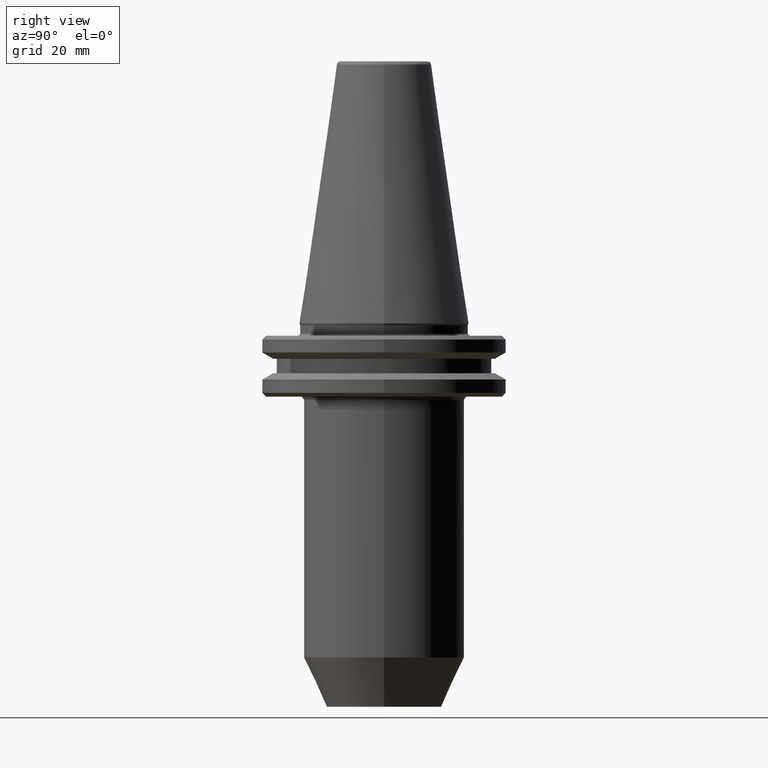
[diagram: clean part render]
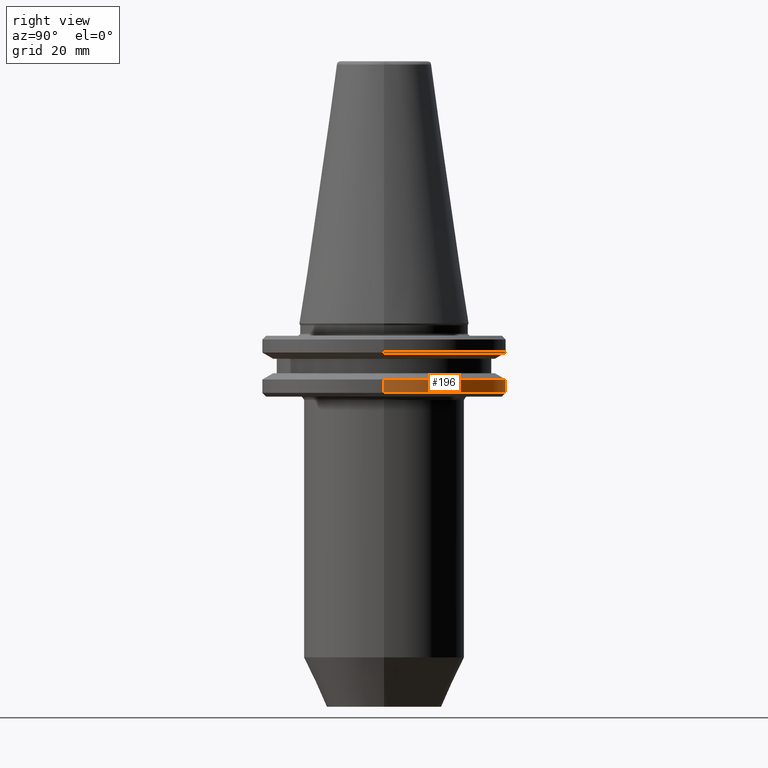
[diagram: same view with one face highlighted and labeled with its STEP entity id]
A machine part, right view. The second image highlights one B-rep face of the part: STEP entity #196.
In plain terms, the highlighted cylindrical surface (partial cylindrical patch) has radius 31.75 mm, axis along (0, 0, 1).
Its self-contained STEP definition (entity closure, byte-faithful):
#56 = DIRECTION ( 'NONE',  ( 0.0000000000000000000, 1.000000000000000000, 5.463695987365708300E-017 ) ) ;
#58 = DIRECTION ( 'NONE',  ( -0.0000000000000000000, -2.997010603902405300E-017, 1.000000000000000000 ) ) ;
#60 = CARTESIAN_POINT ( 'NONE',  ( 0.0000000000000000000, 4.860661613497607000E-017, -14.62183664187525500 ) ) ;
#68 = ORIENTED_EDGE ( 'NONE', *, *, #943, .T. ) ;
#70 = CARTESIAN_POINT ( 'NONE',  ( 31.74999999784801500, 0.0000000000000000000, -18.10000000215199000 ) ) ;
#129 = VERTEX_POINT ( 'NONE', #1045 ) ;
#137 = EDGE_CURVE ( 'NONE', #751, #129, #1102, .T. ) ;
#164 = VECTOR ( 'NONE', #217, 1000.000000000000000 ) ;
#196 = ADVANCED_FACE ( 'NONE', ( #1015 ), #977, .T. ) ;
#216 = CARTESIAN_POINT ( 'NONE',  ( -31.75000000000000000, 3.888253587292846500E-015, -17.93431457499999800 ) ) ;
#217 = DIRECTION ( 'NONE',  ( 0.0000000000000000000, 0.0000000000000000000, 1.000000000000000000 ) ) ;
#235 = VECTOR ( 'NONE', #1115, 1000.000000000000000 ) ;
#265 = EDGE_CURVE ( 'NONE', #1168, #710, #1344, .T. ) ;
#269 = LINE ( 'NONE', #216, #164 ) ;
#275 = CARTESIAN_POINT ( 'NONE',  ( 0.0000000000000000000, 31.74999999978393800, -14.62183664187525300 ) ) ;
#288 = VERTEX_POINT ( 'NONE', #935 ) ;
#315 = CARTESIAN_POINT ( 'NONE',  ( -31.74999999784801500, 3.888253587029304600E-015, -18.10000000215199000 ) ) ;
#381 = ORIENTED_EDGE ( 'NONE', *, *, #137, .F. ) ;
#600 = CARTESIAN_POINT ( 'NONE',  ( 31.75000000000000000, 0.0000000000000000000, -17.93431457499999800 ) ) ;
#605 = EDGE_CURVE ( 'NONE', #1168, #288, #1289, .T. ) ;
#612 = AXIS2_PLACEMENT_3D ( 'NONE', #1034, #961, #1181 ) ;
#669 = ORIENTED_EDGE ( 'NONE', *, *, #265, .T. ) ;
#689 = ORIENTED_EDGE ( 'NONE', *, *, #605, .F. ) ;
#710 = VERTEX_POINT ( 'NONE', #315 ) ;
#751 = VERTEX_POINT ( 'NONE', #275 ) ;
#794 = DIRECTION ( 'NONE',  ( -0.0000000000000000000, -2.997010603902405300E-017, 1.000000000000000000 ) ) ;
#935 = CARTESIAN_POINT ( 'NONE',  ( 31.74999999978393100, 1.653892339742538800E-028, -14.62183664187525500 ) ) ;
#943 = EDGE_CURVE ( 'NONE', #710, #129, #269, .T. ) ;
#961 = DIRECTION ( 'NONE',  ( 0.0000000000000000000, 0.0000000000000000000, 1.000000000000000000 ) ) ;
#966 = AXIS2_PLACEMENT_3D ( 'NONE', #60, #58, #56 ) ;
#977 = CYLINDRICAL_SURFACE ( 'NONE', #612, 31.75000000000000000 ) ;
#1015 = FACE_OUTER_BOUND ( 'NONE', #1247, .T. ) ;
#1016 = DIRECTION ( 'NONE',  ( -0.0000000000000000000, -0.0000000000000000000, 1.000000000000000000 ) ) ;
#1018 = CARTESIAN_POINT ( 'NONE',  ( 0.0000000000000000000, 0.0000000000000000000, -18.10000000215199000 ) ) ;
#1023 = DIRECTION ( 'NONE',  ( 1.000000000000000000, 0.0000000000000000000, 0.0000000000000000000 ) ) ;
#1028 = DIRECTION ( 'NONE',  ( 0.0000000000000000000, 1.000000000000000000, 5.463695987365708300E-017 ) ) ;
#1034 = CARTESIAN_POINT ( 'NONE',  ( 0.0000000000000000000, 0.0000000000000000000, -17.93431457499999800 ) ) ;
#1045 = CARTESIAN_POINT ( 'NONE',  ( -31.74999999978393100, 3.888253587279781400E-015, -14.62183664187525500 ) ) ;
#1059 = CARTESIAN_POINT ( 'NONE',  ( 0.0000000000000000000, 4.860661613497607000E-017, -14.62183664187525500 ) ) ;
#1083 = CIRCLE ( 'NONE', #966, 31.74999999978393100 ) ;
#1102 = CIRCLE ( 'NONE', #1144, 31.74999999978393100 ) ;
#1115 = DIRECTION ( 'NONE',  ( 0.0000000000000000000, 0.0000000000000000000, 1.000000000000000000 ) ) ;
#1122 = EDGE_CURVE ( 'NONE', #288, #751, #1083, .T. ) ;
#1144 = AXIS2_PLACEMENT_3D ( 'NONE', #1059, #794, #1028 ) ;
#1167 = ORIENTED_EDGE ( 'NONE', *, *, #1122, .F. ) ;
#1168 = VERTEX_POINT ( 'NONE', #70 ) ;
#1181 = DIRECTION ( 'NONE',  ( 1.000000000000000000, 0.0000000000000000000, 0.0000000000000000000 ) ) ;
#1247 = EDGE_LOOP ( 'NONE', ( #669, #68, #381, #1167, #689 ) ) ;
#1289 = LINE ( 'NONE', #600, #235 ) ;
#1340 = AXIS2_PLACEMENT_3D ( 'NONE', #1018, #1016, #1023 ) ;
#1344 = CIRCLE ( 'NONE', #1340, 31.74999999784873600 ) ;